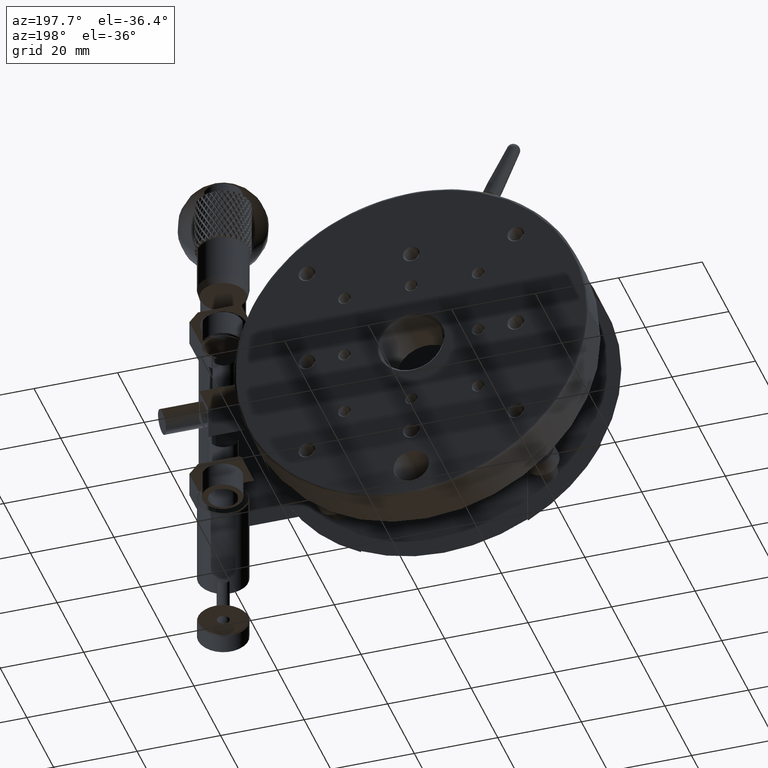
[diagram: clean part render]
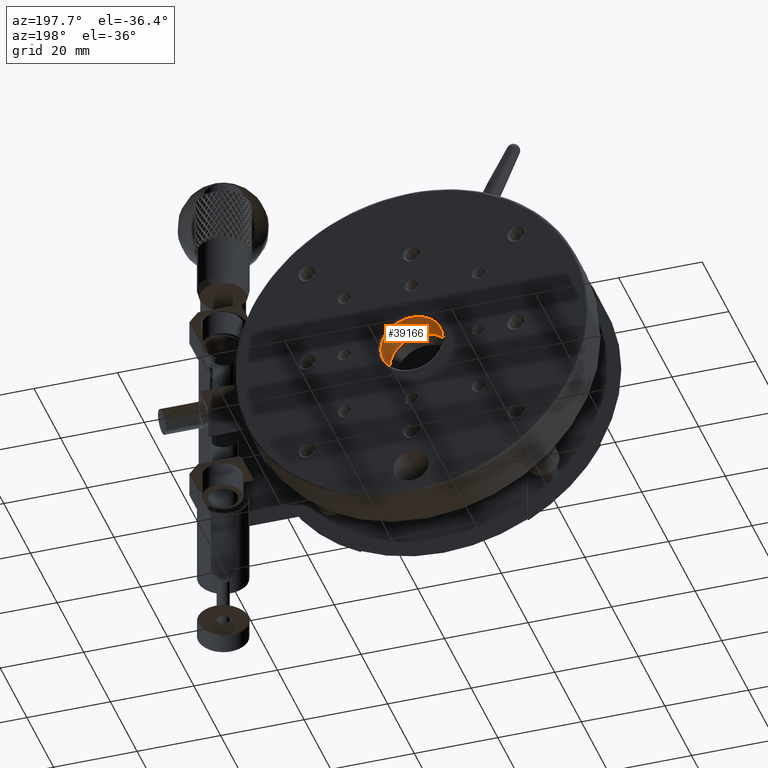
[diagram: same view with one face highlighted and labeled with its STEP entity id]
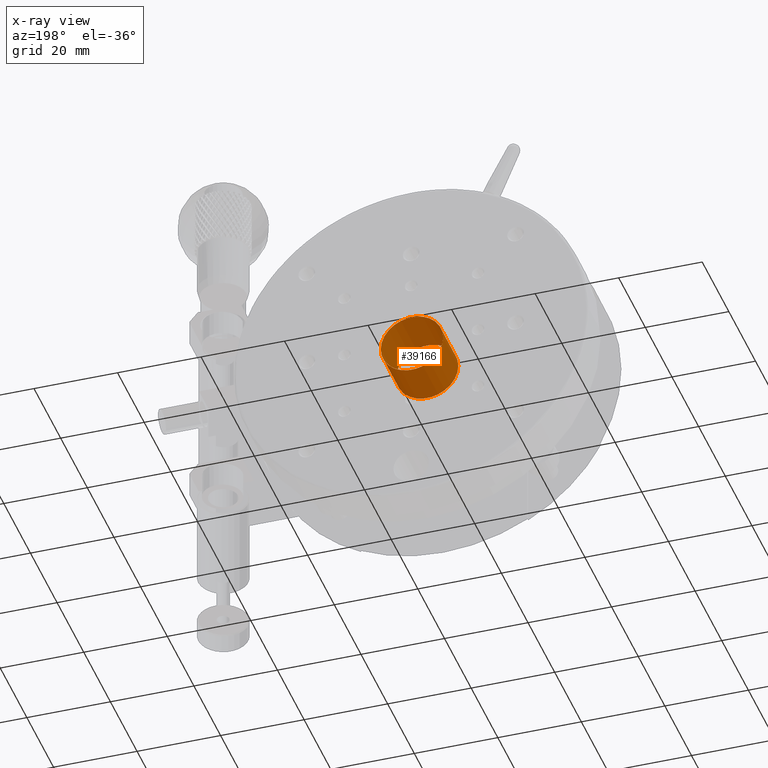
[diagram: x-ray of the same camera — body ghosted, the highlighted face saturated]
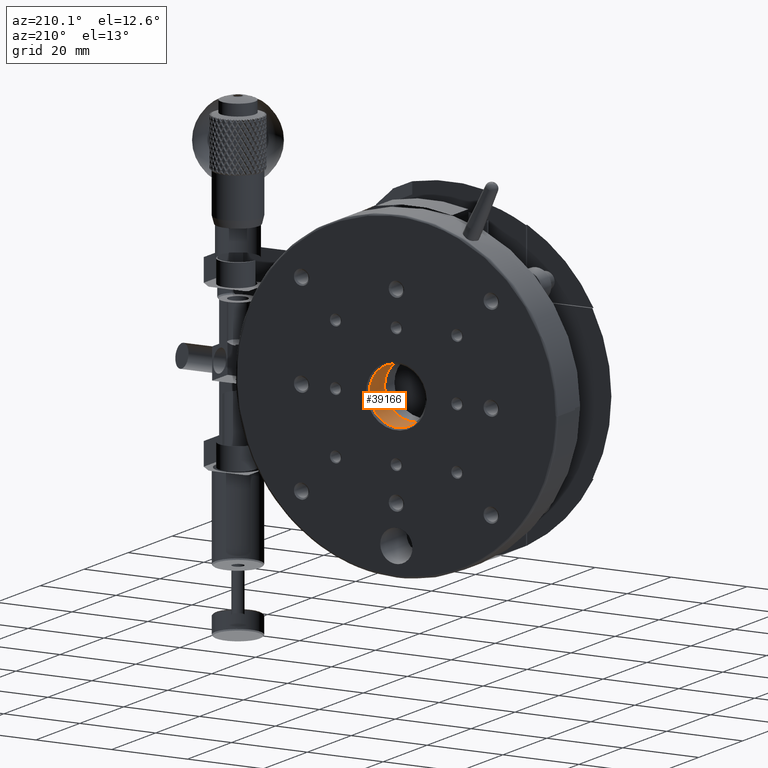
[diagram: same view with one face highlighted and labeled with its STEP entity id]
A machine part, auxiliary view. The second image highlights one B-rep face of the part: STEP entity #39166.
The next image is the same camera in x-ray: the body ghosted, the highlighted face saturated — about 0% of this face is hidden behind the body in this view.
A second angle (auxiliary view) of the same face is appended — the face is thin or edge-on in the first view.
In plain terms, the highlighted cylindrical surface (bore or boss wall) has radius 7.4585 mm, axis along (0, -1, 0).
Its self-contained STEP definition (entity closure, byte-faithful):
#904 = CYLINDRICAL_SURFACE ( 'NONE', #77558, 7.458499999999999908 ) ;
#3134 = EDGE_LOOP ( 'NONE', ( #40170 ) ) ;
#8527 = CARTESIAN_POINT ( 'NONE',  ( 0.000000000000000000, 13.00000000000000178, 0.000000000000000000 ) ) ;
#10607 = EDGE_CURVE ( 'NONE', #77463, #77463, #51276, .T. ) ;
#12386 = AXIS2_PLACEMENT_3D ( 'NONE', #72174, #52814, #47705 ) ;
#20876 = CARTESIAN_POINT ( 'NONE',  ( -7.458499999999999908, 13.00000000000000178, 0.000000000000000000 ) ) ;
#21592 = DIRECTION ( 'NONE',  ( -1.000000000000000000, 0.000000000000000000, 0.000000000000000000 ) ) ;
#25363 = CARTESIAN_POINT ( 'NONE',  ( 0.000000000000000000, 13.00000000000000178, 0.000000000000000000 ) ) ;
#31744 = EDGE_LOOP ( 'NONE', ( #49390 ) ) ;
#33353 = FACE_OUTER_BOUND ( 'NONE', #3134, .T. ) ;
#39166 = ADVANCED_FACE ( 'NONE', ( #58561, #33353 ), #904, .F. ) ;
#40170 = ORIENTED_EDGE ( 'NONE', *, *, #81167, .F. ) ;
#40526 = DIRECTION ( 'NONE',  ( -0.000000000000000000, 1.000000000000000000, -0.000000000000000000 ) ) ;
#40642 = AXIS2_PLACEMENT_3D ( 'NONE', #8527, #40526, #21592 ) ;
#45452 = CARTESIAN_POINT ( 'NONE',  ( -7.458499999999999908, 24.45850000000000080, 0.000000000000000000 ) ) ;
#47705 = DIRECTION ( 'NONE',  ( -1.000000000000000000, 0.000000000000000000, 0.000000000000000000 ) ) ;
#49390 = ORIENTED_EDGE ( 'NONE', *, *, #10607, .F. ) ;
#51276 = CIRCLE ( 'NONE', #12386, 7.458499999999999908 ) ;
#51849 = DIRECTION ( 'NONE',  ( 0.000000000000000000, -1.000000000000000000, 0.000000000000000000 ) ) ;
#52814 = DIRECTION ( 'NONE',  ( 0.000000000000000000, -1.000000000000000000, 0.000000000000000000 ) ) ;
#58561 = FACE_OUTER_BOUND ( 'NONE', #31744, .T. ) ;
#58975 = DIRECTION ( 'NONE',  ( -1.000000000000000000, 0.000000000000000000, 0.000000000000000000 ) ) ;
#65441 = VERTEX_POINT ( 'NONE', #20876 ) ;
#67504 = CIRCLE ( 'NONE', #40642, 7.458499999999999908 ) ;
#72174 = CARTESIAN_POINT ( 'NONE',  ( 0.000000000000000000, 24.45850000000000080, 0.000000000000000000 ) ) ;
#77463 = VERTEX_POINT ( 'NONE', #45452 ) ;
#77558 = AXIS2_PLACEMENT_3D ( 'NONE', #25363, #51849, #58975 ) ;
#81167 = EDGE_CURVE ( 'NONE', #65441, #65441, #67504, .T. ) ;